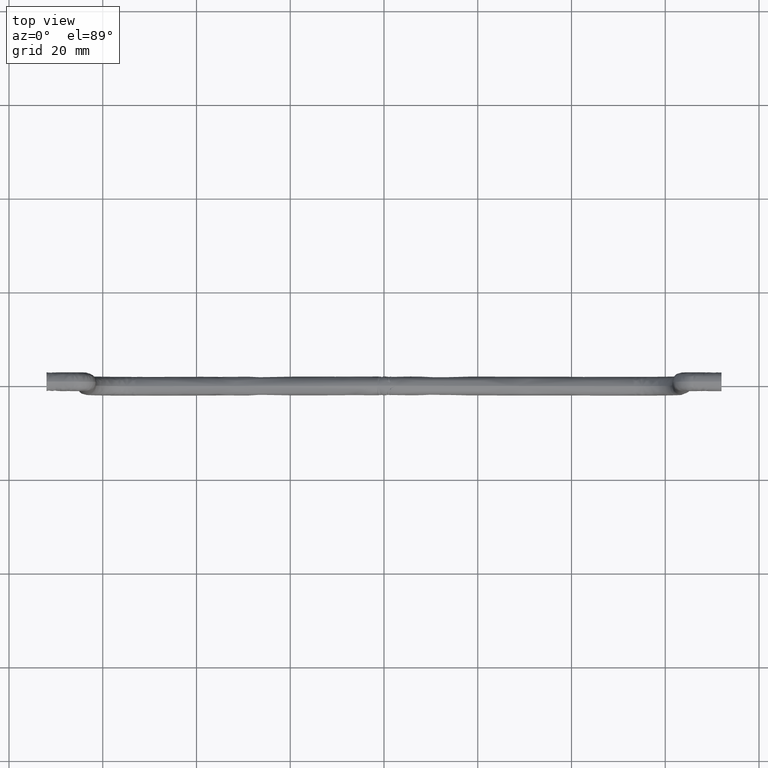
[diagram: clean part render]
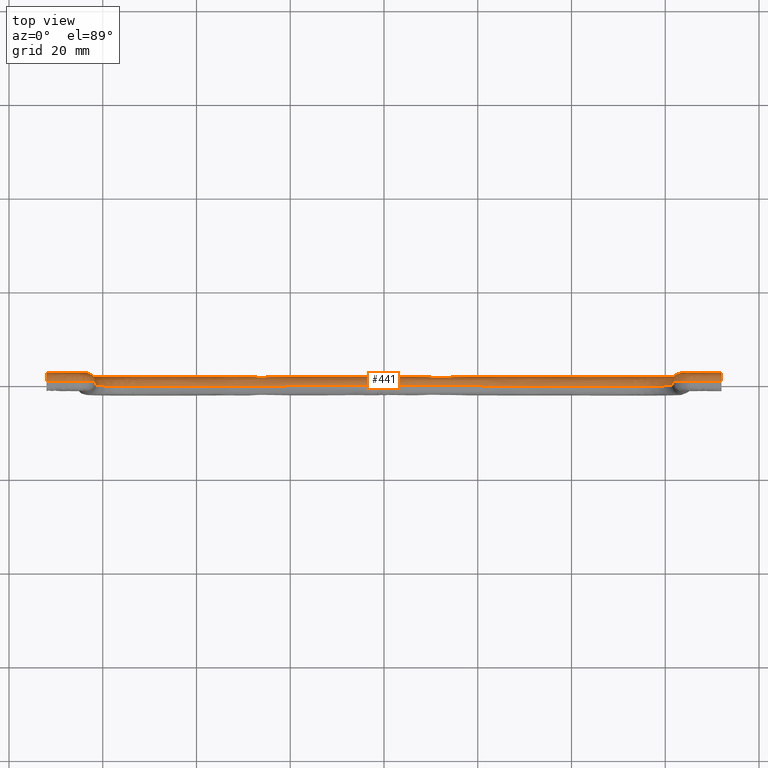
[diagram: same view with one face highlighted and labeled with its STEP entity id]
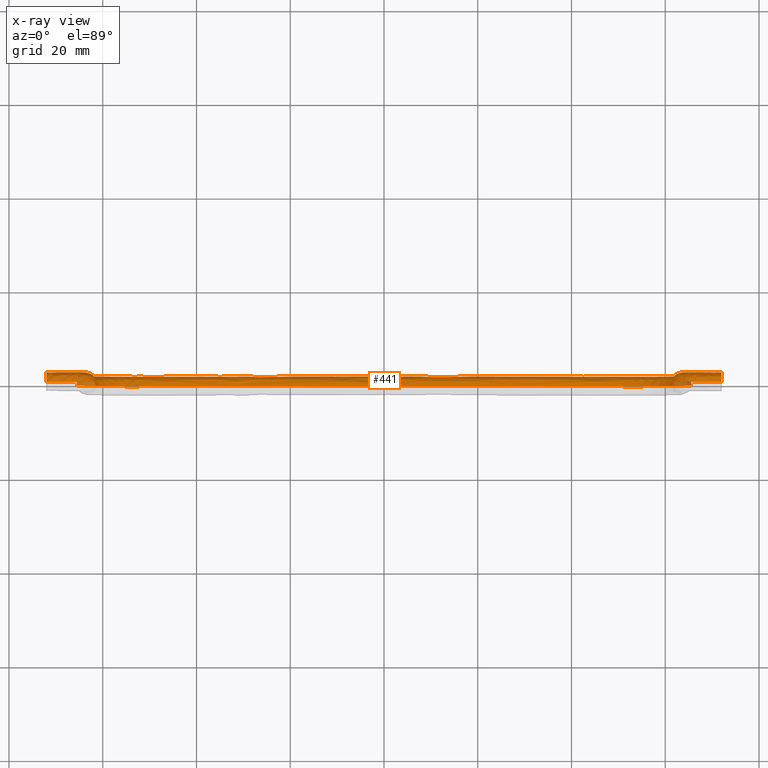
[diagram: x-ray of the same camera — body ghosted, the highlighted face saturated]
A machine part, top view. The second image highlights one B-rep face of the part: STEP entity #441.
The next image is the same camera in x-ray: the body ghosted, the highlighted face saturated — about 2% of this face is hidden behind the body in this view.
In plain terms, the highlighted face is a freeform B-spline surface patch.
Its self-contained STEP definition (entity closure, byte-faithful):
#10=CARTESIAN_POINT('',(-71.999999999999204,-3.367667E-015,49.0));
#11=VERTEX_POINT('',#10);
#12=CARTESIAN_POINT('',(-71.999999999999204,-2.602085E-015,53.0));
#13=VERTEX_POINT('',#12);
#23=CARTESIAN_POINT('',(-71.999999999999204,-2.602085E-015,53.0));
#24=CARTESIAN_POINT('',(-71.999999999999204,1.104569499661584,53.0));
#25=CARTESIAN_POINT('',(-71.999999999999204,2.0,52.104569499661601));
#26=CARTESIAN_POINT('',(-71.999999999999204,2.0,49.895430500338399));
#27=CARTESIAN_POINT('',(-71.999999999999204,1.104569499661584,49.0));
#28=CARTESIAN_POINT('',(-71.999999999999204,-3.122746E-015,49.0));
#29=B_SPLINE_CURVE_WITH_KNOTS('',3,(#23,#24,#25,#26,#27,#28),.UNSPECIFIED.,.F.,.U.,(4,2,4),(0.500000000000000,0.750000000000000,1.0),.UNSPECIFIED.);
#30=EDGE_CURVE('',#13,#11,#29,.T.);
#35=CARTESIAN_POINT('',(72.769999999999200,-0.066274169979698,53.0));
#36=CARTESIAN_POINT('',(72.769999999999200,1.068389197984540,53.035711964534137));
#37=CARTESIAN_POINT('',(72.769999999999243,2.000000094804648,52.126661315025153));
#38=CARTESIAN_POINT('',(72.769999999999243,2.000000093989680,49.873338681507242));
#39=CARTESIAN_POINT('',(72.769999999999243,1.068389198016195,48.964288035603147));
#40=CARTESIAN_POINT('',(72.769999999999243,-0.066274169979699,49.0));
#41=CARTESIAN_POINT('',(70.680000000058527,-0.066274169979698,53.000000000000007));
#42=CARTESIAN_POINT('',(70.680000000059579,1.068389197984540,53.035711964534151));
#43=CARTESIAN_POINT('',(70.680000000032479,2.000000094804648,52.126661315025153));
#44=CARTESIAN_POINT('',(70.679999999965645,2.000000093989680,49.873338681507242));
#45=CARTESIAN_POINT('',(70.679999999938673,1.068389198016195,48.964288035603147));
#46=CARTESIAN_POINT('',(70.679999999939781,-0.066274169979699,49.0));
#47=CARTESIAN_POINT('',(68.589999999795381,-0.066274169979698,53.000000000000007));
#48=CARTESIAN_POINT('',(68.589999999791729,1.068389197984540,53.035711964534151));
#49=CARTESIAN_POINT('',(68.589999999884427,2.000000094804648,52.126661315025153));
#50=CARTESIAN_POINT('',(68.590000000114173,2.000000093989680,49.873338681507242));
#51=CARTESIAN_POINT('',(68.590000000206871,1.068389198016195,48.964288035603161));
#52=CARTESIAN_POINT('',(68.590000000203133,-0.066274169979699,49.000000000000007));
#53=CARTESIAN_POINT('',(66.499999999795165,-0.066274169979698,53.0));
#54=CARTESIAN_POINT('',(66.499999999791513,1.068389197984540,53.035711964534137));
#55=CARTESIAN_POINT('',(66.499999999884324,2.000000094804648,52.126661315025153));
#56=CARTESIAN_POINT('',(66.500000000114383,2.000000093989680,49.873338681507242));
#57=CARTESIAN_POINT('',(66.500000000207081,1.068389198016195,48.964288035603147));
#58=CARTESIAN_POINT('',(66.500000000203443,-0.066274169979699,49.0));
#59=CARTESIAN_POINT('',(63.762265521263103,-0.066274169979698,52.999999999889297));
#60=CARTESIAN_POINT('',(63.742965343056888,1.068389197984540,53.035711964421459));
#61=CARTESIAN_POINT('',(64.234252780274716,2.000000094804648,52.126661314962647));
#62=CARTESIAN_POINT('',(65.452038722613224,2.000000093989680,49.873338681569052));
#63=CARTESIAN_POINT('',(65.943326157882822,1.068389198016195,48.964288035715043));
#64=CARTESIAN_POINT('',(65.924025979750809,-0.066274169979699,49.000000000109900));
#65=CARTESIAN_POINT('',(61.499999999779099,-0.066274169979699,50.737734478123393));
#66=CARTESIAN_POINT('',(61.464288035241033,1.068389197984538,50.757034656318659));
#67=CARTESIAN_POINT('',(62.373338684850303,2.000000094804648,50.265747219379222));
#68=CARTESIAN_POINT('',(64.626661318616712,2.000000093989680,49.047961277730451));
#69=CARTESIAN_POINT('',(65.535711964621058,1.068389198016195,48.556673842739237));
#70=CARTESIAN_POINT('',(65.500000000220297,-0.066274169979699,48.575974020860187));
#71=CARTESIAN_POINT('',(61.500000000000000,-0.066274169979701,47.999999999591203));
#72=CARTESIAN_POINT('',(61.464288035465863,1.068389197984536,47.999999999583913));
#73=CARTESIAN_POINT('',(62.373338684974847,2.000000094804648,47.999999999769493));
#74=CARTESIAN_POINT('',(64.626661318492765,2.000000093989680,48.000000000229413));
#75=CARTESIAN_POINT('',(65.535711964396839,1.068389198016195,48.000000000414879));
#76=CARTESIAN_POINT('',(65.500000000000000,-0.066274169979699,48.000000000407603));
#77=CARTESIAN_POINT('',(61.500000000000000,-0.066274169979701,33.666666828822251));
#78=CARTESIAN_POINT('',(61.464288035465863,1.068389197984536,33.666666828815003));
#79=CARTESIAN_POINT('',(62.373338684974847,2.000000094804648,33.666666829000540));
#80=CARTESIAN_POINT('',(64.626661318492765,2.000000093989680,33.666666829460468));
#81=CARTESIAN_POINT('',(65.535711964396839,1.068389198016192,33.666666829645983));
#82=CARTESIAN_POINT('',(65.500000000000000,-0.066274169979699,33.666666829638700));
#83=CARTESIAN_POINT('',(61.500000000000000,-0.066274169979700,19.333333657849352));
#84=CARTESIAN_POINT('',(61.464288035465863,1.068389197984538,19.333333657838409));
#85=CARTESIAN_POINT('',(62.373338684974847,2.000000094804648,19.333333658116729));
#86=CARTESIAN_POINT('',(64.626661318492765,2.000000093989680,19.333333658806609));
#87=CARTESIAN_POINT('',(65.535711964396839,1.068389198016195,19.333333659084889));
#88=CARTESIAN_POINT('',(65.500000000000000,-0.066274169979699,19.333333659073951));
#89=CARTESIAN_POINT('',(61.500000000000000,-0.066274169979699,5.000000487080398));
#90=CARTESIAN_POINT('',(61.464288035465863,1.068389197984538,5.000000487069475));
#91=CARTESIAN_POINT('',(62.373338684974847,2.000000094804648,5.000000487347796));
#92=CARTESIAN_POINT('',(64.626661318492765,2.000000093989680,5.000000488037654));
#93=CARTESIAN_POINT('',(65.535711964396839,1.068389198016195,5.000000488315944));
#94=CARTESIAN_POINT('',(65.500000000000000,-0.066274169979698,5.000000488304999));
#95=CARTESIAN_POINT('',(61.499999999827700,-0.066274169979699,2.744949859354695));
#96=CARTESIAN_POINT('',(61.464288035290473,1.068389197984538,2.754993414614324));
#97=CARTESIAN_POINT('',(62.373338684877737,2.000000094804648,2.499333986430019));
#98=CARTESIAN_POINT('',(64.626661318589669,2.000000093989680,1.865614428217155));
#99=CARTESIAN_POINT('',(65.535711964572002,1.068389198016195,1.609955001046665));
#100=CARTESIAN_POINT('',(65.500000000172108,-0.066274169979698,1.619998556267654));
#101=CARTESIAN_POINT('',(60.549887900855083,-0.066274169979699,0.597236137994758));
#102=CARTESIAN_POINT('',(60.518434237215551,1.068389197984538,0.616905516658358));
#103=CARTESIAN_POINT('',(61.319089528346822,2.000000094804648,0.116220054997959));
#104=CARTESIAN_POINT('',(63.303725577093203,2.000000093989680,-1.124861378299656));
#105=CARTESIAN_POINT('',(64.104380865049393,1.068389198016196,-1.625546837974570));
#106=CARTESIAN_POINT('',(64.072927201530788,-0.066274169979698,-1.605877459386612));
#107=CARTESIAN_POINT('',(57.212616559406378,-0.066274169979699,-2.436512916882667));
#108=CARTESIAN_POINT('',(57.196026450821002,1.068389197984538,-2.403331812161965));
#109=CARTESIAN_POINT('',(57.618328869119303,2.000000094804648,-3.247959241407534));
#110=CARTESIAN_POINT('',(58.665117183780097,2.000000093989681,-5.341591872589406));
#111=CARTESIAN_POINT('',(59.087419600403663,1.068389198016197,-6.186219298485564));
#112=CARTESIAN_POINT('',(59.070829491882080,-0.066274169979697,-6.153038193892443));
#113=CARTESIAN_POINT('',(54.984306237078300,-0.066274169979699,-3.178146507784495));
#114=CARTESIAN_POINT('',(54.977703177007122,1.068389197984538,-3.141641480529118));
#115=CARTESIAN_POINT('',(55.145784550427969,2.000000094804648,-4.070879599174733));
#116=CARTESIAN_POINT('',(55.562418720599581,2.000000093989680,-6.374242217971302));
#117=CARTESIAN_POINT('',(55.730500093353903,1.068389198016196,-7.303480332931964));
#118=CARTESIAN_POINT('',(55.723897033308099,-0.066274169979697,-7.266975305816951));
#119=CARTESIAN_POINT('',(52.739468945332703,-0.066274169979699,-2.963766994779345));
#120=CARTESIAN_POINT('',(52.742863952805934,1.068389197984538,-2.928216772063526));
#121=CARTESIAN_POINT('',(52.656443791134677,2.000000094804648,-3.833150271846473));
#122=CARTESIAN_POINT('',(52.442228547581877,2.000000093989680,-6.076267460081106));
#123=CARTESIAN_POINT('',(52.355808386253202,1.068389198016196,-6.981200956275478));
#124=CARTESIAN_POINT('',(52.359203393713393,-0.066274169979698,-6.945650733696350));
#125=CARTESIAN_POINT('',(35.666666665650503,-0.066274169979699,-1.333332999902964));
#126=CARTESIAN_POINT('',(35.670061673123740,1.068389197984538,-1.297782777187144));
#127=CARTESIAN_POINT('',(35.583641511452377,2.000000094804648,-2.202716276970088));
#128=CARTESIAN_POINT('',(35.369426267899620,2.000000093989680,-4.445833465204726));
#129=CARTESIAN_POINT('',(35.283006106570923,1.068389198016195,-5.350766961399098));
#130=CARTESIAN_POINT('',(35.286401114031108,-0.066274169979698,-5.315216738819960));
#131=CARTESIAN_POINT('',(18.593864334484451,-0.066274169979699,0.297100999890069));
#132=CARTESIAN_POINT('',(18.597259341996399,1.068389197984538,0.332651222602192));
#133=CARTESIAN_POINT('',(18.510839179340010,2.000000094804648,-0.572282277086685));
#134=CARTESIAN_POINT('',(18.296623933345590,2.000000093989680,-2.815399465088145));
#135=CARTESIAN_POINT('',(18.210203771031910,1.068389198016195,-3.720332961188447));
#136=CARTESIAN_POINT('',(18.213598778530798,-0.066274169979698,-3.684782738613011));
#137=CARTESIAN_POINT('',(1.521062128935422,-0.066274169979700,1.927523236758975));
#138=CARTESIAN_POINT('',(1.524457136556930,1.068389197984538,1.963073433259535));
#139=CARTESIAN_POINT('',(1.438036971111544,2.000000094804648,1.058140600787852));
#140=CARTESIAN_POINT('',(1.223821718203852,2.000000093989680,-1.184974933339199));
#141=CARTESIAN_POINT('',(1.137401553101154,1.068389198016194,-2.089907762222308));
#142=CARTESIAN_POINT('',(1.140796560709605,-0.066274169979698,-2.054357565858437));
#143=CARTESIAN_POINT('',(0.510011068639754,-0.066274169979700,2.024158920043109));
#144=CARTESIAN_POINT('',(0.511149412244263,1.068389197984538,2.059924807236592));
#145=CARTESIAN_POINT('',(0.482172793160576,2.000000094804648,1.149501552519945));
#146=CARTESIAN_POINT('',(0.410346573511123,2.000000093989680,-1.107223446292951));
#147=CARTESIAN_POINT('',(0.381369954542331,1.068389198016195,-2.017646697399257));
#148=CARTESIAN_POINT('',(0.382508298142450,-0.066274169979699,-1.981880810343288));
#149=CARTESIAN_POINT('',(-0.510011086955908,-0.066274169979700,2.024158920455600));
#150=CARTESIAN_POINT('',(-0.511149430887466,1.068389197984538,2.059924807656444));
#151=CARTESIAN_POINT('',(-0.482172803478614,2.000000094804648,1.149501552752319));
#152=CARTESIAN_POINT('',(-0.410346563193059,2.000000093989681,-1.107223446525321));
#153=CARTESIAN_POINT('',(-0.381369935899125,1.068389198016196,-2.017646697819108));
#154=CARTESIAN_POINT('',(-0.382508279826301,-0.066274169979699,-1.981880810755781));
#155=CARTESIAN_POINT('',(-1.521062062557803,-0.066274169979699,1.927523241744900));
#156=CARTESIAN_POINT('',(-1.524457068994074,1.068389197984538,1.963073438334489));
#157=CARTESIAN_POINT('',(-1.438036933718980,2.000000094804648,1.058140603596578));
#158=CARTESIAN_POINT('',(-1.223821755596381,2.000000093989680,-1.184974936147921));
#159=CARTESIAN_POINT('',(-1.137401620664009,1.068389198016194,-2.089907767297263));
#160=CARTESIAN_POINT('',(-1.140796627087227,-0.066274169979699,-2.054357570844362));
#161=CARTESIAN_POINT('',(-18.593864282275248,-0.066274169979698,0.297101004875992));
#162=CARTESIAN_POINT('',(-18.597259288854939,1.068389197984538,0.332651227677145));
#163=CARTESIAN_POINT('',(-18.510839149928959,2.000000094804648,-0.572282274277960));
#164=CARTESIAN_POINT('',(-18.296623962756630,2.000000093989680,-2.815399467896869));
#165=CARTESIAN_POINT('',(-18.210203824173352,1.068389198016195,-3.720332966263396));
#166=CARTESIAN_POINT('',(-18.213598830740001,-0.066274169979698,-3.684782743598935));
#167=CARTESIAN_POINT('',(-35.666666665650553,-0.066274169979698,-1.333332999902966));
#168=CARTESIAN_POINT('',(-35.670061673123783,1.068389197984540,-1.297782777187148));
#169=CARTESIAN_POINT('',(-35.583641511452377,2.000000094804648,-2.202716276970088));
#170=CARTESIAN_POINT('',(-35.369426267899570,2.000000093989680,-4.445833465204721));
#171=CARTESIAN_POINT('',(-35.283006106570923,1.068389198016195,-5.350766961399088));
#172=CARTESIAN_POINT('',(-35.286401114031108,-0.066274169979698,-5.315216738819961));
#173=CARTESIAN_POINT('',(-52.739468945332803,-0.066274169979698,-2.963766994779350));
#174=CARTESIAN_POINT('',(-52.742863952806033,1.068389197984540,-2.928216772063532));
#175=CARTESIAN_POINT('',(-52.656443791134677,2.000000094804648,-3.833150271846473));
#176=CARTESIAN_POINT('',(-52.442228547581770,2.000000093989680,-6.076267460081106));
#177=CARTESIAN_POINT('',(-52.355808386253123,1.068389198016195,-6.981200956275478));
#178=CARTESIAN_POINT('',(-52.359203393713301,-0.066274169979698,-6.945650733696340));
#179=CARTESIAN_POINT('',(-54.984306237078300,-0.066274169979698,-3.178146507784495));
#180=CARTESIAN_POINT('',(-54.977703177007122,1.068389197984540,-3.141641480529113));
#181=CARTESIAN_POINT('',(-55.145784550427983,2.000000094804648,-4.070879599174733));
#182=CARTESIAN_POINT('',(-55.562418720599467,2.000000093989680,-6.374242217971314));
#183=CARTESIAN_POINT('',(-55.730500093353903,1.068389198016196,-7.303480332931977));
#184=CARTESIAN_POINT('',(-55.723897033308099,-0.066274169979698,-7.266975305816961));
#185=CARTESIAN_POINT('',(-57.212616559406392,-0.066274169979698,-2.436512916882657));
#186=CARTESIAN_POINT('',(-57.196026450821023,1.068389197984540,-2.403331812161954));
#187=CARTESIAN_POINT('',(-57.618328869119303,2.000000094804648,-3.247959241407533));
#188=CARTESIAN_POINT('',(-58.665117183780012,2.000000093989680,-5.341591872589423));
#189=CARTESIAN_POINT('',(-59.087419600403578,1.068389198016196,-6.186219298485579));
#190=CARTESIAN_POINT('',(-59.070829491882002,-0.066274169979698,-6.153038193892460));
#191=CARTESIAN_POINT('',(-60.549887900855083,-0.066274169979698,0.597236137994783));
#192=CARTESIAN_POINT('',(-60.518434237215551,1.068389197984540,0.616905516658379));
#193=CARTESIAN_POINT('',(-61.319089528346822,2.000000094804648,0.116220054997961));
#194=CARTESIAN_POINT('',(-63.303725577093211,2.000000093989680,-1.124861378299681));
#195=CARTESIAN_POINT('',(-64.104380865049407,1.068389198016194,-1.625546837974588));
#196=CARTESIAN_POINT('',(-64.072927201530803,-0.066274169979698,-1.605877459386630));
#197=CARTESIAN_POINT('',(-61.499999999827700,-0.066274169979698,2.744949859354715));
#198=CARTESIAN_POINT('',(-61.464288035290473,1.068389197984540,2.754993414614345));
#199=CARTESIAN_POINT('',(-62.373338684877737,2.000000094804648,2.499333986430019));
#200=CARTESIAN_POINT('',(-64.626661318589555,2.000000093989680,1.865614428217130));
#201=CARTESIAN_POINT('',(-65.535711964572016,1.068389198016195,1.609955001046640));
#202=CARTESIAN_POINT('',(-65.500000000172108,-0.066274169979698,1.619998556267634));
#203=CARTESIAN_POINT('',(-61.500000000000000,-0.066274169979698,5.000000487080430));
#204=CARTESIAN_POINT('',(-61.464288035465863,1.068389197984540,5.000000487069498));
#205=CARTESIAN_POINT('',(-62.373338684974847,2.000000094804648,5.000000487347796));
#206=CARTESIAN_POINT('',(-64.626661318492765,2.000000093989680,5.000000488037624));
#207=CARTESIAN_POINT('',(-65.535711964396839,1.068389198016195,5.000000488315924));
#208=CARTESIAN_POINT('',(-65.500000000000000,-0.066274169979699,5.000000488304979));
#209=CARTESIAN_POINT('',(-61.500000000000000,-0.066274169979699,19.333333657849341));
#210=CARTESIAN_POINT('',(-61.464288035465863,1.068389197984538,19.333333657838470));
#211=CARTESIAN_POINT('',(-62.373338684974847,2.000000094804648,19.333333658116729));
#212=CARTESIAN_POINT('',(-64.626661318492765,2.000000093989680,19.333333658806559));
#213=CARTESIAN_POINT('',(-65.535711964396839,1.068389198016195,19.333333659084889));
#214=CARTESIAN_POINT('',(-65.500000000000000,-0.066274169979700,19.333333659073951));
#215=CARTESIAN_POINT('',(-61.500000000000000,-0.066274169979700,33.666666828822301));
#216=CARTESIAN_POINT('',(-61.464288035465863,1.068389197984538,33.666666828815003));
#217=CARTESIAN_POINT('',(-62.373338684974847,2.000000094804648,33.666666829000548));
#218=CARTESIAN_POINT('',(-64.626661318492765,2.000000093989680,33.666666829460418));
#219=CARTESIAN_POINT('',(-65.535711964396839,1.068389198016192,33.666666829645941));
#220=CARTESIAN_POINT('',(-65.500000000000000,-0.066274169979700,33.666666829638658));
#221=CARTESIAN_POINT('',(-61.500000000000000,-0.066274169979700,47.999999999591203));
#222=CARTESIAN_POINT('',(-61.464288035465863,1.068389197984538,47.999999999583913));
#223=CARTESIAN_POINT('',(-62.373338684974847,2.000000094804648,47.999999999769493));
#224=CARTESIAN_POINT('',(-64.626661318492765,2.000000093989680,48.000000000229413));
#225=CARTESIAN_POINT('',(-65.535711964396839,1.068389198016192,48.000000000414879));
#226=CARTESIAN_POINT('',(-65.500000000000000,-0.066274169979700,48.000000000407603));
#227=CARTESIAN_POINT('',(-61.499999999779099,-0.066274169979698,50.737734478123393));
#228=CARTESIAN_POINT('',(-61.464288035241033,1.068389197984540,50.757034656318673));
#229=CARTESIAN_POINT('',(-62.373338684850303,2.000000094804648,50.265747219379122));
#230=CARTESIAN_POINT('',(-64.626661318616712,2.000000093989680,49.047961277730451));
#231=CARTESIAN_POINT('',(-65.535711964621058,1.068389198016195,48.556673842739130));
#232=CARTESIAN_POINT('',(-65.500000000220297,-0.066274169979700,48.575974020860201));
#233=CARTESIAN_POINT('',(-63.762265521263103,-0.066274169979698,52.999999999889297));
#234=CARTESIAN_POINT('',(-63.742965343056888,1.068389197984540,53.035711964421459));
#235=CARTESIAN_POINT('',(-64.234252780274602,2.000000094804648,52.126661314962647));
#236=CARTESIAN_POINT('',(-65.452038722613224,2.000000093989680,49.873338681569052));
#237=CARTESIAN_POINT('',(-65.943326157882822,1.068389198016195,48.964288035715043));
#238=CARTESIAN_POINT('',(-65.924025979750809,-0.066274169979699,49.000000000109900));
#239=CARTESIAN_POINT('',(-66.499999999795165,-0.066274169979698,53.0));
#240=CARTESIAN_POINT('',(-66.499999999791513,1.068389197984540,53.035711964534137));
#241=CARTESIAN_POINT('',(-66.499999999884324,2.000000094804648,52.126661315025153));
#242=CARTESIAN_POINT('',(-66.500000000114269,2.000000093989680,49.873338681507242));
#243=CARTESIAN_POINT('',(-66.500000000207081,1.068389198016195,48.964288035603147));
#244=CARTESIAN_POINT('',(-66.500000000203443,-0.066274169979699,49.0));
#245=CARTESIAN_POINT('',(-68.589999999795381,-0.066274169979698,53.0));
#246=CARTESIAN_POINT('',(-68.589999999791729,1.068389197984540,53.035711964534137));
#247=CARTESIAN_POINT('',(-68.589999999884441,2.000000094804648,52.126661315025153));
#248=CARTESIAN_POINT('',(-68.590000000114188,2.000000093989680,49.873338681507242));
#249=CARTESIAN_POINT('',(-68.590000000206757,1.068389198016195,48.964288035603147));
#250=CARTESIAN_POINT('',(-68.590000000203133,-0.066274169979699,49.0));
#251=CARTESIAN_POINT('',(-70.680000000058513,-0.066274169979698,53.0));
#252=CARTESIAN_POINT('',(-70.680000000059565,1.068389197984540,53.035711964534137));
#253=CARTESIAN_POINT('',(-70.680000000032621,2.000000094804648,52.126661315025153));
#254=CARTESIAN_POINT('',(-70.679999999965645,2.000000093989680,49.873338681507242));
#255=CARTESIAN_POINT('',(-70.679999999938715,1.068389198016195,48.964288035603147));
#256=CARTESIAN_POINT('',(-70.679999999939767,-0.066274169979699,49.0));
#257=CARTESIAN_POINT('',(-72.769999999999200,-0.066274169979698,53.0));
#258=CARTESIAN_POINT('',(-72.769999999999200,1.068389197984540,53.035711964534137));
#259=CARTESIAN_POINT('',(-72.769999999999200,2.000000094804648,52.126661315025153));
#260=CARTESIAN_POINT('',(-72.769999999999243,2.000000093989680,49.873338681507242));
#261=CARTESIAN_POINT('',(-72.769999999999243,1.068389198016195,48.964288035603147));
#262=CARTESIAN_POINT('',(-72.769999999999243,-0.066274169979699,49.0));
#263=B_SPLINE_SURFACE_WITH_KNOTS('',3,3,((#35,#41,#47,#53,#59,#65,#71,#77,#83,#89,#95,#101,#107,#113,#119,#125,#131,#137,#143,#149,#155,#161,#167,#173,#179,#185,#191,#197,#203,#209,#215,#221,#227,#233,#239,#245,#251,#257),(#36,#42,#48,#54,#60,#66,#72,#78,#84,#90,#96,#102,#108,#114,#120,#126,#132,#138,#144,#150,#156,#162,#168,#174,#180,#186,#192,#198,#204,#210,#216,#222,#228,#234,#240,#246,#252,#258),(#37,#43,#49,#55,#61,#67,#73,#79,#85,#91,#97,#103,#109,#115,#121,#127,#133,#139,#145,#151,#157,#163,#169,#175,#181,#187,#193,#199,#205,#211,#217,#223,#229,#235,#241,#247,#253,#259),(#38,#44,#50,#56,#62,#68,#74,#80,#86,#92,#98,#104,#110,#116,#122,#128,#134,#140,#146,#152,#158,#164,#170,#176,#182,#188,#194,#200,#206,#212,#218,#224,#230,#236,#242,#248,#254,#260),(#39,#45,#51,#57,#63,#69,#75,#81,#87,#93,#99,#105,#111,#117,#123,#129,#135,#141,#147,#153,#159,#165,#171,#177,#183,#189,#195,#201,#207,#213,#219,#225,#231,#237,#243,#249,#255,#261),(#40,#46,#52,#58,#64,#70,#76,#82,#88,#94,#100,#106,#112,#118,#124,#130,#136,#142,#148,#154,#160,#166,#172,#178,#184,#190,#196,#202,#208,#214,#220,#226,#232,#238,#244,#250,#256,#262)),.UNSPECIFIED.,.F.,.F.,.U.,(4,2,4),(4,3,3,3,2,3,3,3,3,2,3,3,3,4),(0.0,3.405675664647353,6.811351329294706),(0.0,58.654634467292951,110.106068210532400,161.557501953771800,213.008935697011200,264.460369440250590,315.911803183490120,418.814670669968900,470.266104413208320,521.717538156447740,573.168971899687220,624.620405642926580,676.071839386165950,734.726473853459080),.UNSPECIFIED.);
#264=CARTESIAN_POINT('',(71.999999999999204,-2.818926E-015,53.0));
#265=VERTEX_POINT('',#264);
#266=CARTESIAN_POINT('',(71.999999999999204,-3.367667E-015,49.0));
#267=VERTEX_POINT('',#266);
#268=CARTESIAN_POINT('',(71.999999999999204,-2.818926E-015,53.0));
#269=CARTESIAN_POINT('',(71.999999999999204,1.104569499661584,53.0));
#270=CARTESIAN_POINT('',(71.999999999999204,2.0,52.104569499661601));
#271=CARTESIAN_POINT('',(71.999999999999204,2.0,49.895430500338399));
#272=CARTESIAN_POINT('',(71.999999999999204,1.104569499661584,49.0));
#273=CARTESIAN_POINT('',(71.999999999999204,-3.122746E-015,49.0));
#274=B_SPLINE_CURVE_WITH_KNOTS('',3,(#268,#269,#270,#271,#272,#273),.UNSPECIFIED.,.F.,.U.,(4,2,4),(0.500000000000000,0.750000000000000,1.0),.UNSPECIFIED.);
#275=EDGE_CURVE('',#265,#267,#274,.T.);
#276=ORIENTED_EDGE('',*,*,#275,.T.);
#277=CARTESIAN_POINT('',(71.999999999999204,-3.367667E-015,49.0));
#278=CARTESIAN_POINT('',(70.183134043127112,-3.508658E-015,48.999984506973547));
#279=CARTESIAN_POINT('',(68.366268086254252,-3.649649E-015,48.999969013947187));
#280=CARTESIAN_POINT('',(66.529434670217455,-3.792432E-015,48.999928591965457));
#281=CARTESIAN_POINT('',(66.439591070592229,-3.800644E-015,49.001260276112824));
#282=CARTESIAN_POINT('',(66.339822174045722,-3.788812E-015,48.991375034571668));
#283=CARTESIAN_POINT('',(66.251906141049133,-3.766111E-015,48.972709199918270));
#284=CARTESIAN_POINT('',(66.223290371223186,-3.755540E-015,48.963858962633822));
#285=CARTESIAN_POINT('',(66.185099364214196,-3.741862E-015,48.952325476182700));
#286=CARTESIAN_POINT('',(66.155975325893635,-3.732896E-015,48.945056594793328));
#287=CARTESIAN_POINT('',(66.108814680581801,-3.713984E-015,48.928818233666100));
#288=CARTESIAN_POINT('',(66.072050022087510,-3.696159E-015,48.912994130326489));
#289=CARTESIAN_POINT('',(66.026917294357190,-3.673309E-015,48.891761463589283));
#290=CARTESIAN_POINT('',(66.000883532126466,-3.658427E-015,48.876917453251131));
#291=CARTESIAN_POINT('',(65.983111412722963,-3.648878E-015,48.867798647839102));
#292=CARTESIAN_POINT('',(65.879596138184397,-3.589265E-015,48.807542172392871));
#293=CARTESIAN_POINT('',(65.732749963250640,-3.484431E-015,48.682795342247992));
#294=CARTESIAN_POINT('',(65.603983234856429,-3.408330E-015,48.478525637368719));
#295=CARTESIAN_POINT('',(65.522485939472077,-3.403208E-015,48.263146824020723));
#296=CARTESIAN_POINT('',(65.498337419619347,-3.474993E-015,48.093454661894476));
#297=CARTESIAN_POINT('',(65.500091090080360,-3.544747E-015,47.973746843926513));
#298=CARTESIAN_POINT('',(65.500052951019683,-3.128978E-015,33.718490456119333));
#299=CARTESIAN_POINT('',(65.500026965795769,-2.726531E-015,19.483191856843181));
#300=CARTESIAN_POINT('',(65.499914347656130,-2.322886E-015,5.128077463563001));
#301=CARTESIAN_POINT('',(65.505320125915574,-2.268221E-015,4.209550489077658));
#302=CARTESIAN_POINT('',(65.338948278532499,-2.185634E-015,2.693681753643048));
#303=CARTESIAN_POINT('',(64.699591243730254,-2.080282E-015,0.502610195902356));
#304=CARTESIAN_POINT('',(63.683973887512643,-1.989795E-015,-1.504689846161345));
#305=CARTESIAN_POINT('',(62.183634214004343,-1.895824E-015,-3.386466955657514));
#306=CARTESIAN_POINT('',(60.629553999925243,-1.811742E-015,-4.716717867682818));
#307=CARTESIAN_POINT('',(58.785272626892308,-1.775726E-015,-5.842769842785002));
#308=CARTESIAN_POINT('',(56.915177438827712,-1.783946E-015,-6.575566430300189));
#309=CARTESIAN_POINT('',(54.673343809600489,-1.846926E-015,-7.004298805051937));
#310=CARTESIAN_POINT('',(53.268938232400323,-1.915381E-015,-7.024456326483892));
#311=CARTESIAN_POINT('',(52.393691515564392,-1.967119E-015,-6.949142245429734));
#312=CARTESIAN_POINT('',(52.314258870124917,-1.965902E-015,-6.940811619203395));
#313=CARTESIAN_POINT('',(35.221822612481141,-2.291485E-015,-5.308685492022065));
#314=CARTESIAN_POINT('',(18.169136964448100,-2.604492E-015,-3.680351959022004));
#315=CARTESIAN_POINT('',(0.400936515999481,-3.268819E-015,-1.983768950369116));
#316=CARTESIAN_POINT('',(-0.441010889020529,-3.590512E-015,-1.983880502968794));
#317=CARTESIAN_POINT('',(-1.235687508000006,-3.234502E-015,-2.063520391233377));
#318=CARTESIAN_POINT('',(-18.288372148214080,-2.982368E-015,-3.691855207754770));
#319=CARTESIAN_POINT('',(-35.261565075263150,-2.699909E-015,-5.312538115416126));
#320=CARTESIAN_POINT('',(-52.314258819698978,-2.416127E-015,-6.940812147295415));
#321=CARTESIAN_POINT('',(-52.393691913130702,-2.417669E-015,-6.949149054041746));
#322=CARTESIAN_POINT('',(-53.189372783170739,-2.371730E-015,-7.017579812801444));
#323=CARTESIAN_POINT('',(-54.552502801577234,-2.324501E-015,-7.011724469637219));
#324=CARTESIAN_POINT('',(-56.446232539691067,-2.326336E-015,-6.678752312321253));
#325=CARTESIAN_POINT('',(-58.495661949548818,-2.376487E-015,-5.991580622377456));
#326=CARTESIAN_POINT('',(-60.422682485636358,-2.472055E-015,-4.905630072304618));
#327=CARTESIAN_POINT('',(-62.294042427037532,-2.571342E-015,-3.271026079777785));
#328=CARTESIAN_POINT('',(-63.628612187362911,-2.696032E-015,-1.562309944244523));
#329=CARTESIAN_POINT('',(-64.569022813503196,-2.835507E-015,0.251354695003824));
#330=CARTESIAN_POINT('',(-65.280056076143509,-2.992467E-015,2.334929414639486));
#331=CARTESIAN_POINT('',(-65.490566892462112,-3.101033E-015,3.890161310675542));
#332=CARTESIAN_POINT('',(-65.500162921350608,-3.167221E-015,4.968299941607681));
#333=CARTESIAN_POINT('',(-65.499483872052480,-3.167767E-015,5.048156186992545));
#334=CARTESIAN_POINT('',(-65.499682814760334,-3.634997E-015,19.403274858066268));
#335=CARTESIAN_POINT('',(-65.499880650693967,-4.099628E-015,33.678531950327312));
#336=CARTESIAN_POINT('',(-65.500092785925531,-4.578128E-015,47.973751679511707));
#337=CARTESIAN_POINT('',(-65.498182567796789,-4.505439E-015,48.103389911400598));
#338=CARTESIAN_POINT('',(-65.530775194541548,-4.331853E-015,48.313114664805532));
#339=CARTESIAN_POINT('',(-65.637248681458530,-4.124194E-015,48.540953909373322));
#340=CARTESIAN_POINT('',(-65.772293124813586,-3.951379E-015,48.715460906686587));
#341=CARTESIAN_POINT('',(-65.943483785968866,-3.800592E-015,48.855942098570651));
#342=CARTESIAN_POINT('',(-66.180803677430916,-3.670511E-015,48.965857957422287));
#343=CARTESIAN_POINT('',(-66.389699279594296,-3.619133E-015,49.000904054189853));
#344=CARTESIAN_POINT('',(-66.519447133734076,-3.613093E-015,49.000059883932487));
#345=CARTESIAN_POINT('',(-68.366268144598195,-3.530578E-015,48.999968546842602));
#346=CARTESIAN_POINT('',(-70.183134043129542,-3.449122E-015,48.999984506974123));
#347=CARTESIAN_POINT('',(-71.999999999999204,-3.367667E-015,49.0));
#348=B_SPLINE_CURVE_WITH_KNOTS('',3,(#277,#278,#279,#280,#281,#282,#283,#284,#285,#286,#287,#288,#289,#290,#291,#292,#293,#294,#295,#296,#297,#298,#299,#300,#301,#302,#303,#304,#305,#306,#307,#308,#309,#310,#311,#312,#313,#314,#315,#316,#317,#318,#319,#320,#321,#322,#323,#324,#325,#326,#327,#328,#329,#330,#331,#332,#333,#334,#335,#336,#337,#338,#339,#340,#341,#342,#343,#344,#345,#346,#347),.UNSPECIFIED.,.F.,.U.,(4,2,1,1,1,1,1,2,1,1,1,2,1,1,1,1,2,2,1,1,1,1,1,1,1,1,1,2,2,1,1,1,2,2,2,1,1,1,1,1,1,1,1,2,2,2,1,1,1,1,1,1,1,2,4),(0.000746332865475,5.451344203705531,5.511238179378609,5.720891370378467,5.750794473288607,5.780733657538349,5.810672841788175,5.870551210287829,5.960384629088821,5.990323960173328,6.020269929093871,6.050215898014585,6.379624581744537,6.619186674042680,6.768905651586238,7.068382397798985,7.128220475931158,49.834116235436881,50.193577610416668,52.589398903608270,54.386285422272408,57.021706611004390,59.297746254871562,61.573830375703352,63.131132249189761,65.766553968822365,67.563441293958647,69.959262347838859,70.198849589126695,121.469813851936000,121.589608819808600,123.745865545359090,123.985446552771710,175.136624652967700,175.376211894255390,177.532463104077210,179.449127167527000,181.126215297458290,184.001213605261310,186.037730976488400,188.553354536868710,190.470023710084490,192.147107683462590,195.141899620945590,195.381484357393590,238.207255638323010,238.267093716454700,238.596478349100290,238.836080924748300,239.015759356853010,239.255334174945600,239.494947015753410,239.794384124965400,239.884225088474610,245.334822959289910),.UNSPECIFIED.);
#349=EDGE_CURVE('',#267,#11,#348,.T.);
#350=ORIENTED_EDGE('',*,*,#349,.T.);
#351=ORIENTED_EDGE('',*,*,#30,.F.);
#352=CARTESIAN_POINT('',(71.999999999999204,-2.818926E-015,53.0));
#353=CARTESIAN_POINT('',(70.203420744151501,-2.783820E-015,52.999996986730451));
#354=CARTESIAN_POINT('',(68.406841474883407,-2.748733E-015,52.999993873734468));
#355=CARTESIAN_POINT('',(66.550340620666987,-2.710543E-015,53.000012749686931));
#356=CARTESIAN_POINT('',(66.450487756957230,-2.711851E-015,53.000559765745507));
#357=CARTESIAN_POINT('',(66.330711203406693,-2.724891E-015,52.997355105775704));
#358=CARTESIAN_POINT('',(66.250930712550513,-2.731126E-015,52.994003099216478));
#359=CARTESIAN_POINT('',(66.191181920275014,-2.736710E-015,52.989848986503837));
#360=CARTESIAN_POINT('',(66.131426729531952,-2.742001E-015,52.986418433896858));
#361=CARTESIAN_POINT('',(65.514462020307377,-2.799721E-015,52.936856386554567));
#362=CARTESIAN_POINT('',(64.927391867023914,-2.876178E-015,52.778274745383449));
#363=CARTESIAN_POINT('',(64.367373056447718,-2.989609E-015,52.514871791321340));
#364=CARTESIAN_POINT('',(64.296693410760497,-3.005441E-015,52.477712276806209));
#365=CARTESIAN_POINT('',(64.206326155487218,-3.023738E-015,52.435222598910030));
#366=CARTESIAN_POINT('',(64.136613452837821,-3.040245E-015,52.396249057350850));
#367=CARTESIAN_POINT('',(64.083762030863340,-3.052221E-015,52.368081586120240));
#368=CARTESIAN_POINT('',(64.031815686043387,-3.064842E-015,52.338267940739470));
#369=CARTESIAN_POINT('',(63.979955293295319,-3.077522E-015,52.308311335257578));
#370=CARTESIAN_POINT('',(63.929007649006458,-3.090839E-015,52.276826232645121));
#371=CARTESIAN_POINT('',(63.877616789466138,-3.103846E-015,52.246076625544497));
#372=CARTESIAN_POINT('',(63.759603611776313,-3.135509E-015,52.171246410677412));
#373=CARTESIAN_POINT('',(63.644056675873742,-3.168864E-015,52.092547718932479));
#374=CARTESIAN_POINT('',(63.531878545678723,-3.204465E-015,52.009225374952493));
#375=CARTESIAN_POINT('',(63.483756024012429,-3.219694E-015,51.973579267885249));
#376=CARTESIAN_POINT('',(63.041500704432963,-3.366362E-015,51.631729601765457));
#377=CARTESIAN_POINT('',(62.419356382074760,-3.660381E-015,50.969276994957362));
#378=CARTESIAN_POINT('',(61.990060165813112,-4.071313E-015,50.174347497045503));
#379=CARTESIAN_POINT('',(61.841677265424529,-4.278223E-015,49.803660668653229));
#380=CARTESIAN_POINT('',(61.820806946810073,-4.310036E-015,49.747531462564602));
#381=CARTESIAN_POINT('',(61.806310135467719,-4.333312E-015,49.710333643429372));
#382=CARTESIAN_POINT('',(61.607267914768073,-4.628171E-015,49.166710300313568));
#383=CARTESIAN_POINT('',(61.498033586675540,-5.039087E-015,48.569084598663572));
#384=CARTESIAN_POINT('',(61.500179449908252,-5.411563E-015,47.970132292895343));
#385=CARTESIAN_POINT('',(61.500069851000802,-4.925361E-015,33.677188705477853));
#386=CARTESIAN_POINT('',(61.499890326053752,-4.469011E-015,19.424117588413541));
#387=CARTESIAN_POINT('',(61.499815062156522,-4.013873E-015,5.091201041041806));
#388=CARTESIAN_POINT('',(61.503259682480980,-3.970998E-015,4.572149001948744));
#389=CARTESIAN_POINT('',(61.416141383499799,-3.887373E-015,3.614662531724269));
#390=CARTESIAN_POINT('',(61.092161018120883,-3.798662E-015,2.374352674812806));
#391=CARTESIAN_POINT('',(60.578182829802600,-3.736144E-015,1.200813981078451));
#392=CARTESIAN_POINT('',(59.713525982693810,-3.695085E-015,-0.148389826110092));
#393=CARTESIAN_POINT('',(58.619931164104592,-3.672017E-015,-1.221920439266343));
#394=CARTESIAN_POINT('',(57.310148540405962,-3.519198E-015,-2.069127299827027));
#395=CARTESIAN_POINT('',(55.958648260920370,-3.452716E-015,-2.680196804625756));
#396=CARTESIAN_POINT('',(54.383161067760518,-3.455759E-015,-3.011421787717963));
#397=CARTESIAN_POINT('',(53.261449048470112,-3.529470E-015,-3.008514800127452));
#398=CARTESIAN_POINT('',(52.744296878587647,-3.576164E-015,-2.964678525449522));
#399=CARTESIAN_POINT('',(52.664887930465319,-3.572451E-015,-2.956197409482471));
#400=CARTESIAN_POINT('',(35.614869879434643,-3.849617E-015,-1.328165532052053));
#401=CARTESIAN_POINT('',(18.644339285251750,-4.125491E-015,0.292276434727438));
#402=CARTESIAN_POINT('',(1.594335348471171,-4.394821E-015,1.920430905357002));
#403=CARTESIAN_POINT('',(0.561198420415304,-4.692566E-015,2.021534015288184));
#404=CARTESIAN_POINT('',(-0.561198352651370,-4.905714E-015,2.021497615846098));
#405=CARTESIAN_POINT('',(-1.594335293602978,-3.906378E-015,1.920434292302669));
#406=CARTESIAN_POINT('',(-18.644339284396260,-3.621852E-015,0.292276434825241));
#407=CARTESIAN_POINT('',(-35.614869879006250,-3.273049E-015,-1.328165532003026));
#408=CARTESIAN_POINT('',(-52.664887930465717,-2.922613E-015,-2.956197409482432));
#409=CARTESIAN_POINT('',(-52.744296741367748,-2.925702E-015,-2.964678117531033));
#410=CARTESIAN_POINT('',(-53.261453939638827,-2.878901E-015,-3.008540588325820));
#411=CARTESIAN_POINT('',(-54.062647941342497,-2.826132E-015,-3.010480163688929));
#412=CARTESIAN_POINT('',(-55.329278419317447,-2.790689E-015,-2.822532717416499));
#413=CARTESIAN_POINT('',(-56.438237790392407,-2.789783E-015,-2.473837668619130));
#414=CARTESIAN_POINT('',(-57.516360365729270,-2.808264E-015,-1.947148426810841));
#415=CARTESIAN_POINT('',(-58.648053007016891,-2.807611E-015,-1.190645003612630));
#416=CARTESIAN_POINT('',(-59.901566852479462,-2.877508E-015,0.058028999955489));
#417=CARTESIAN_POINT('',(-60.904060464088943,-2.937367E-015,1.758748450555039));
#418=CARTESIAN_POINT('',(-61.401673582104699,-3.016512E-015,3.455068475054553));
#419=CARTESIAN_POINT('',(-61.503239639169287,-3.103484E-015,4.572155332400117));
#420=CARTESIAN_POINT('',(-61.499817386064123,-3.146010E-015,5.091200281407265));
#421=CARTESIAN_POINT('',(-61.499890326054171,-3.528829E-015,19.424117588411619));
#422=CARTESIAN_POINT('',(-61.500069851000447,-3.913530E-015,33.677188705477178));
#423=CARTESIAN_POINT('',(-61.500135712567094,-4.323753E-015,47.970145269411489));
#424=CARTESIAN_POINT('',(-61.498620375870878,-4.019717E-015,48.449240421319011));
#425=CARTESIAN_POINT('',(-61.614289507363416,-3.555972E-015,49.246541668095240));
#426=CARTESIAN_POINT('',(-62.011066983874173,-3.158377E-015,50.254253712655341));
#427=CARTESIAN_POINT('',(-62.570408521436413,-2.924752E-015,51.134241475473267));
#428=CARTESIAN_POINT('',(-63.388248864867172,-2.807245E-015,51.964984775456273));
#429=CARTESIAN_POINT('',(-64.351312181135398,-2.783682E-015,52.551118528958000));
#430=CARTESIAN_POINT('',(-65.393634419969302,-2.769681E-015,52.908660927176633));
#431=CARTESIAN_POINT('',(-66.051248435225901,-2.744140E-015,52.994369681285399));
#432=CARTESIAN_POINT('',(-66.470406955539815,-2.714093E-015,52.999779828503982));
#433=CARTESIAN_POINT('',(-68.326909997535992,-2.677139E-015,52.999673453843677));
#434=CARTESIAN_POINT('',(-70.183411336822644,-2.639193E-015,52.999841477315712));
#435=CARTESIAN_POINT('',(-71.999999999999204,-2.602085E-015,53.0));
#436=B_SPLINE_CURVE_WITH_KNOTS('',3,(#352,#353,#354,#355,#356,#357,#358,#359,#360,#361,#362,#363,#364,#365,#366,#367,#368,#369,#370,#371,#372,#373,#374,#375,#376,#377,#378,#379,#380,#381,#382,#383,#384,#385,#386,#387,#388,#389,#390,#391,#392,#393,#394,#395,#396,#397,#398,#399,#400,#401,#402,#403,#404,#405,#406,#407,#408,#409,#410,#411,#412,#413,#414,#415,#416,#417,#418,#419,#420,#421,#422,#423,#424,#425,#426,#427,#428,#429,#430,#431,#432,#433,#434,#435),.UNSPECIFIED.,.F.,.U.,(4,2,1,1,1,1,1,1,2,1,1,1,1,1,1,1,1,1,1,1,1,1,1,1,1,1,2,1,2,2,1,1,1,1,1,1,1,1,1,2,2,2,1,1,2,2,2,1,1,1,1,1,1,1,1,1,2,2,1,1,1,1,1,1,1,2,1,4),(0.000822976195479,5.390560743743009,5.570329003513081,5.690090292396974,5.749982901403172,5.809870820202519,5.869758739001640,5.929596359677646,7.666340277394966,7.786099145851807,7.905858014308194,7.965746731881183,8.025635449453546,8.085521061337204,8.145411554534434,8.205297224703401,8.265182894872652,8.325066260266397,8.624500052826249,8.684386990583050,8.744273928340363,8.804158920281424,10.361217303298281,11.439181510398560,11.499061034186211,11.558946122452260,11.618831210717961,13.295637610007701,13.415300868444801,56.174514223008117,56.414053397913392,57.731536268016328,59.049039576658373,60.246766947597393,61.564254892705037,63.839971758115887,64.798159467941133,66.235437298474722,68.271572015308806,69.589061906353294,69.828608901446216,120.971767459922900,121.211310005487410,124.085869265652510,124.325411810430300,175.468570370199190,175.708117365291910,177.025607256336200,178.103559944261090,179.540833900910090,180.499019803702910,181.696736721854710,183.613150144204300,185.769054554489490,187.565649723962910,188.883132594063710,189.122671768967510,231.881885123503000,232.001548381939610,233.319014664491500,234.277216862120100,235.235405536862690,236.433141986455210,237.750648029186010,238.589056813086700,239.726891162176200,239.846629302950110,245.296395310998610),.UNSPECIFIED.);
#437=EDGE_CURVE('',#265,#13,#436,.T.);
#438=ORIENTED_EDGE('',*,*,#437,.F.);
#439=EDGE_LOOP('',(#276,#350,#351,#438));
#440=FACE_OUTER_BOUND('',#439,.T.);
#441=ADVANCED_FACE('',(#440),#263,.T.);